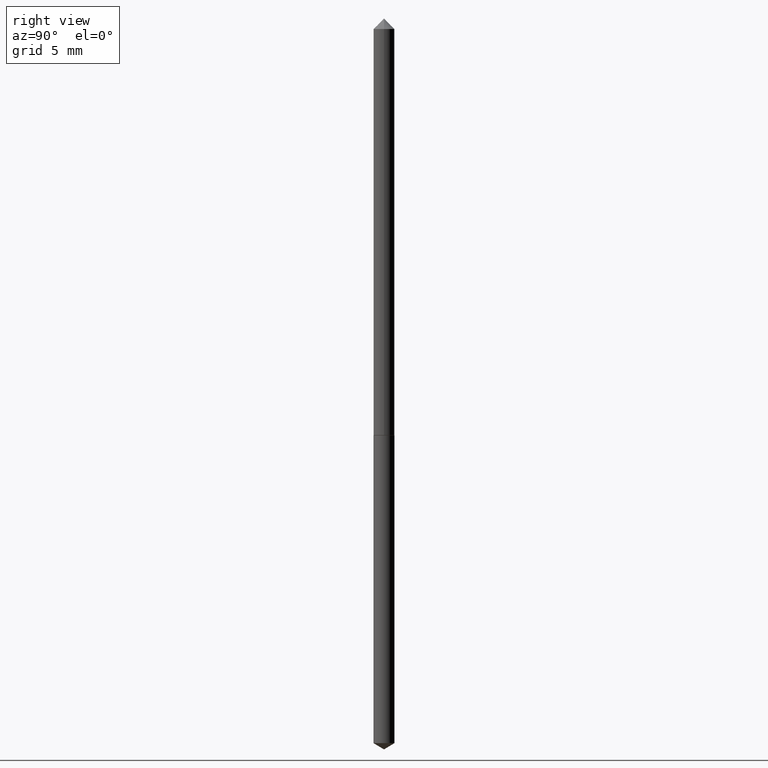
[diagram: clean part render]
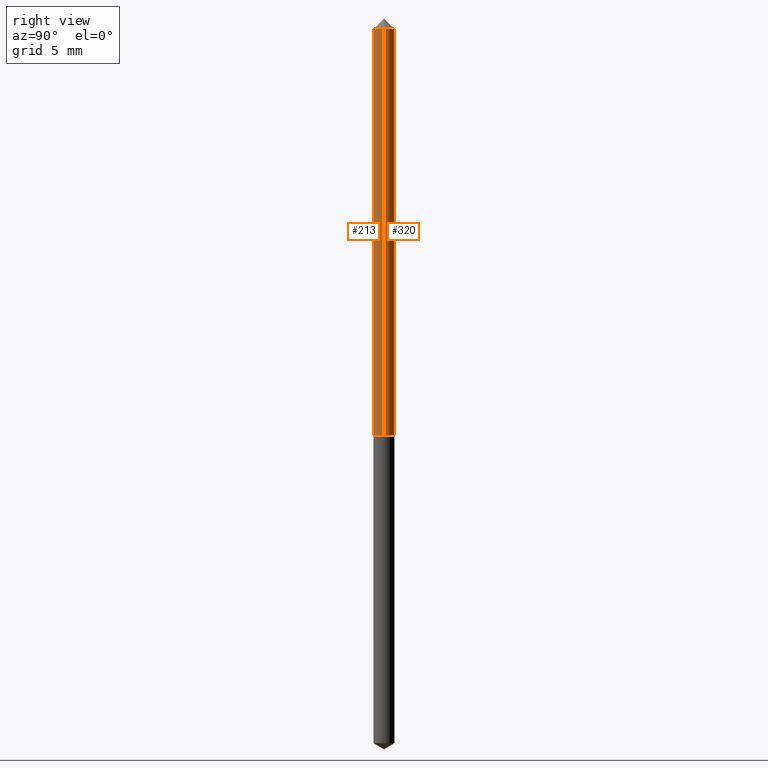
[diagram: same view with one multi-face feature highlighted, each face labeled with its STEP entity id]
A machine part, right view. The highlighted faces form ONE feature: a constant-radius fillet chain: 2 tangent blend faces with common blend radius 0.4953 mm. The faces share edges in the B-rep.
Their STEP definitions:
[1] entity #213 (Cylinder):
#24 = CARTESIAN_POINT ( 'NONE',  ( 7.642090019328602662E-31, -1.091087918388490267E-16, -0.03125000000000020817 ) ) ;
#28 = AXIS2_PLACEMENT_3D ( 'NONE', #342, #199, #147 ) ;
#31 = ORIENTED_EDGE ( 'NONE', *, *, #55, .T. ) ;
#43 = EDGE_CURVE ( 'NONE', #176, #282, #237, .T. ) ;
#51 = VERTEX_POINT ( 'NONE', #330 ) ;
#55 = EDGE_CURVE ( 'NONE', #159, #282, #71, .T. ) ;
#69 = AXIS2_PLACEMENT_3D ( 'NONE', #277, #144, #105 ) ;
#71 = LINE ( 'NONE', #299, #196 ) ;
#78 = DIRECTION ( 'NONE',  ( -2.445468806185136877E-29, 3.491481338843145188E-15, 1.000000000000000000 ) ) ;
#101 = ORIENTED_EDGE ( 'NONE', *, *, #337, .F. ) ;
#103 = ORIENTED_EDGE ( 'NONE', *, *, #358, .T. ) ;
#105 = DIRECTION ( 'NONE',  ( 1.000000000000000000, -6.982962677686273810E-15, 0.000000000000000000 ) ) ;
#116 = CIRCLE ( 'NONE', #69, 0.01950000000000009365 ) ;
#124 = CARTESIAN_POINT ( 'NONE',  ( 0.01950000000000009365, -2.889200807892702791E-15, -0.7884999999999999787 ) ) ;
#135 = DIRECTION ( 'NONE',  ( -2.445468806185136877E-29, 3.491481338843145188E-15, 1.000000000000000000 ) ) ;
#144 = DIRECTION ( 'NONE',  ( -2.445468806185136597E-29, 3.491481338843145583E-15, 1.000000000000000000 ) ) ;
#147 = DIRECTION ( 'NONE',  ( 1.000000000000000000, -6.982962677686267499E-15, 4.876176775795936353E-29 ) ) ;
#159 = VERTEX_POINT ( 'NONE', #124 ) ;
#176 = VERTEX_POINT ( 'NONE', #259 ) ;
#185 = DIRECTION ( 'NONE',  ( 1.000000000000000000, -6.982962677686265922E-15, 0.000000000000000000 ) ) ;
#186 = DIRECTION ( 'NONE',  ( -2.445468806185136597E-29, 3.491481338843145583E-15, 1.000000000000000000 ) ) ;
#196 = VECTOR ( 'NONE', #135, 39.37007874015748143 ) ;
#199 = DIRECTION ( 'NONE',  ( -2.445468806185136597E-29, 3.491481338843145583E-15, 1.000000000000000000 ) ) ;
#213 = ADVANCED_FACE ( 'NONE', ( #261 ), #348, .T. ) ;
#215 = CARTESIAN_POINT ( 'NONE',  ( 0.01950000000000000344, -2.452765640537312108E-16, -0.03125000000000020817 ) ) ;
#227 = LINE ( 'NONE', #280, #336 ) ;
#237 = CIRCLE ( 'NONE', #352, 0.01950000000000000344 ) ;
#241 = ORIENTED_EDGE ( 'NONE', *, *, #43, .F. ) ;
#259 = CARTESIAN_POINT ( 'NONE',  ( -0.01950000000000000344, -1.292515080285113506E-15, -0.03125000000000020817 ) ) ;
#261 = FACE_OUTER_BOUND ( 'NONE', #312, .T. ) ;
#277 = CARTESIAN_POINT ( 'NONE',  ( 1.928252153676979944E-29, -2.753033035677819991E-15, -0.7884999999999999787 ) ) ;
#280 = CARTESIAN_POINT ( 'NONE',  ( -0.01950000000000004854, 1.385558334732198812E-16, -9.591923425997091666E-31 ) ) ;
#282 = VERTEX_POINT ( 'NONE', #215 ) ;
#299 = CARTESIAN_POINT ( 'NONE',  ( 0.01950000000000004854, -1.361677722148825539E-16, 9.508544712802099179E-31 ) ) ;
#312 = EDGE_LOOP ( 'NONE', ( #101, #103, #31, #241 ) ) ;
#330 = CARTESIAN_POINT ( 'NONE',  ( -0.01950000000000009365, -2.614477202204599937E-15, -0.7884999999999999787 ) ) ;
#336 = VECTOR ( 'NONE', #78, 39.37007874015748143 ) ;
#337 = EDGE_CURVE ( 'NONE', #51, #176, #227, .T. ) ;
#342 = CARTESIAN_POINT ( 'NONE',  ( 0.000000000000000000, 0.000000000000000000, 0.000000000000000000 ) ) ;
#348 = CYLINDRICAL_SURFACE ( 'NONE', #28, 0.01950000000000004854 ) ;
#352 = AXIS2_PLACEMENT_3D ( 'NONE', #24, #186, #185 ) ;
#358 = EDGE_CURVE ( 'NONE', #51, #159, #116, .T. ) ;
[2] entity #320 (Cylinder):
#5 = CARTESIAN_POINT ( 'NONE',  ( 1.928252153676979944E-29, -2.753033035677819991E-15, -0.7884999999999999787 ) ) ;
#16 = AXIS2_PLACEMENT_3D ( 'NONE', #5, #119, #81 ) ;
#47 = EDGE_LOOP ( 'NONE', ( #250, #210, #298, #146 ) ) ;
#51 = VERTEX_POINT ( 'NONE', #330 ) ;
#55 = EDGE_CURVE ( 'NONE', #159, #282, #71, .T. ) ;
#65 = EDGE_CURVE ( 'NONE', #282, #176, #193, .T. ) ;
#71 = LINE ( 'NONE', #299, #196 ) ;
#78 = DIRECTION ( 'NONE',  ( -2.445468806185136877E-29, 3.491481338843145188E-15, 1.000000000000000000 ) ) ;
#81 = DIRECTION ( 'NONE',  ( 1.000000000000000000, -6.982962677686273810E-15, 0.000000000000000000 ) ) ;
#88 = DIRECTION ( 'NONE',  ( -2.445468806185136597E-29, 3.491481338843145583E-15, 1.000000000000000000 ) ) ;
#100 = CARTESIAN_POINT ( 'NONE',  ( 0.000000000000000000, 0.000000000000000000, 0.000000000000000000 ) ) ;
#119 = DIRECTION ( 'NONE',  ( -2.445468806185136597E-29, 3.491481338843145583E-15, 1.000000000000000000 ) ) ;
#124 = CARTESIAN_POINT ( 'NONE',  ( 0.01950000000000009365, -2.889200807892702791E-15, -0.7884999999999999787 ) ) ;
#135 = DIRECTION ( 'NONE',  ( -2.445468806185136877E-29, 3.491481338843145188E-15, 1.000000000000000000 ) ) ;
#146 = ORIENTED_EDGE ( 'NONE', *, *, #55, .F. ) ;
#148 = AXIS2_PLACEMENT_3D ( 'NONE', #100, #339, #279 ) ;
#158 = AXIS2_PLACEMENT_3D ( 'NONE', #293, #88, #240 ) ;
#159 = VERTEX_POINT ( 'NONE', #124 ) ;
#176 = VERTEX_POINT ( 'NONE', #259 ) ;
#181 = CIRCLE ( 'NONE', #16, 0.01950000000000009365 ) ;
#193 = CIRCLE ( 'NONE', #158, 0.01950000000000000344 ) ;
#196 = VECTOR ( 'NONE', #135, 39.37007874015748143 ) ;
#210 = ORIENTED_EDGE ( 'NONE', *, *, #337, .T. ) ;
#215 = CARTESIAN_POINT ( 'NONE',  ( 0.01950000000000000344, -2.452765640537312108E-16, -0.03125000000000020817 ) ) ;
#227 = LINE ( 'NONE', #280, #336 ) ;
#240 = DIRECTION ( 'NONE',  ( 1.000000000000000000, -6.982962677686265922E-15, 0.000000000000000000 ) ) ;
#250 = ORIENTED_EDGE ( 'NONE', *, *, #300, .T. ) ;
#252 = FACE_OUTER_BOUND ( 'NONE', #47, .T. ) ;
#259 = CARTESIAN_POINT ( 'NONE',  ( -0.01950000000000000344, -1.292515080285113506E-15, -0.03125000000000020817 ) ) ;
#279 = DIRECTION ( 'NONE',  ( 1.000000000000000000, -6.982962677686267499E-15, 4.876176775795936353E-29 ) ) ;
#280 = CARTESIAN_POINT ( 'NONE',  ( -0.01950000000000004854, 1.385558334732198812E-16, -9.591923425997091666E-31 ) ) ;
#282 = VERTEX_POINT ( 'NONE', #215 ) ;
#293 = CARTESIAN_POINT ( 'NONE',  ( 7.642090019328602662E-31, -1.091087918388490267E-16, -0.03125000000000020817 ) ) ;
#297 = CYLINDRICAL_SURFACE ( 'NONE', #148, 0.01950000000000004854 ) ;
#298 = ORIENTED_EDGE ( 'NONE', *, *, #65, .F. ) ;
#299 = CARTESIAN_POINT ( 'NONE',  ( 0.01950000000000004854, -1.361677722148825539E-16, 9.508544712802099179E-31 ) ) ;
#300 = EDGE_CURVE ( 'NONE', #159, #51, #181, .T. ) ;
#320 = ADVANCED_FACE ( 'NONE', ( #252 ), #297, .T. ) ;
#330 = CARTESIAN_POINT ( 'NONE',  ( -0.01950000000000009365, -2.614477202204599937E-15, -0.7884999999999999787 ) ) ;
#336 = VECTOR ( 'NONE', #78, 39.37007874015748143 ) ;
#337 = EDGE_CURVE ( 'NONE', #51, #176, #227, .T. ) ;
#339 = DIRECTION ( 'NONE',  ( -2.445468806185136597E-29, 3.491481338843145583E-15, 1.000000000000000000 ) ) ;